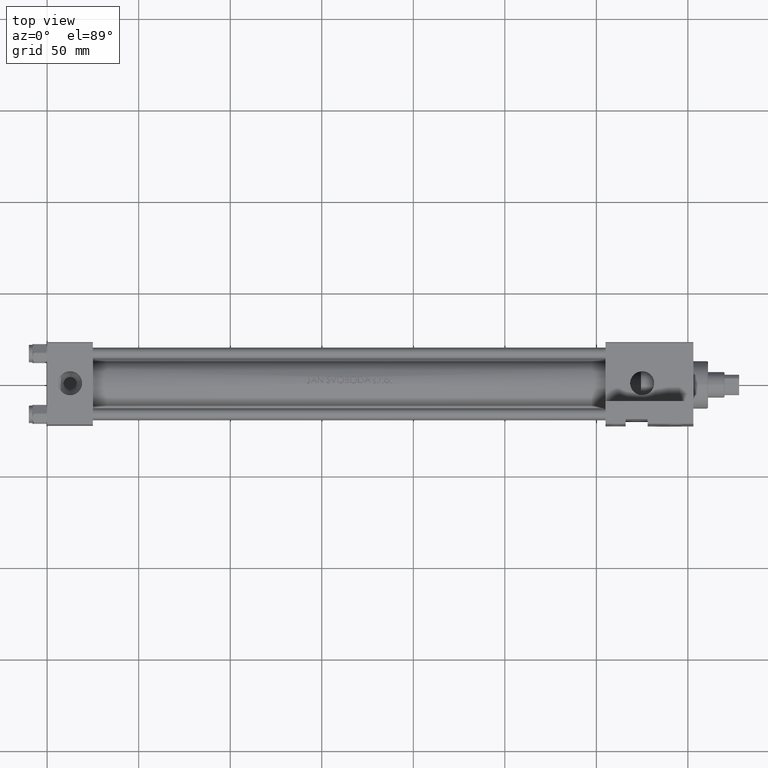
[diagram: clean part render]
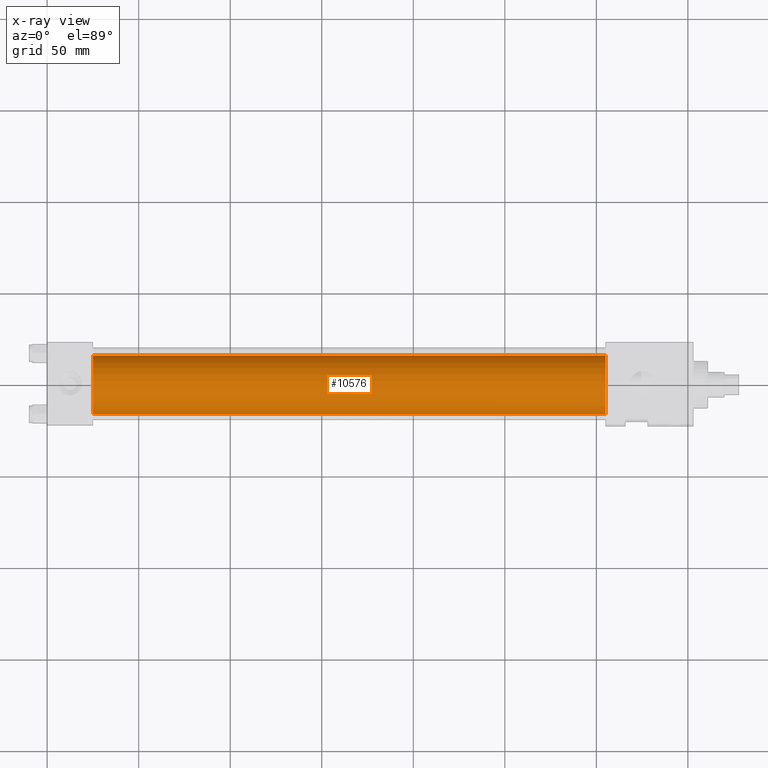
[diagram: x-ray — body ghosted, one internal face saturated and labeled with its STEP entity id]
A machine part, top view, then the same camera in x-ray: the body is ghosted and one INTERNAL B-rep face — a face not visible from any outside direction — is saturated and labeled: STEP entity #10576.
In plain terms, the highlighted cylindrical surface (edge-blend (fillet) strip) has radius 16 mm, axis along (-1, -0, 0).
Its self-contained STEP definition (entity closure, byte-faithful):
#270 = LINE ( 'NONE', #30950, #27333 ) ;
#1685 = CYLINDRICAL_SURFACE ( 'NONE', #13077, 16.00000000000000000 ) ;
#2990 = VERTEX_POINT ( 'NONE', #31631 ) ;
#4295 = DIRECTION ( 'NONE',  ( -1.000000000000000000, -0.000000000000000000, -0.000000000000000000 ) ) ;
#5916 = LINE ( 'NONE', #25515, #32840 ) ;
#6171 = DIRECTION ( 'NONE',  ( -1.000000000000000000, -0.000000000000000000, -0.000000000000000000 ) ) ;
#7547 = CARTESIAN_POINT ( 'NONE',  ( 305.0000000000000568, 2.020667218593132311E-15, -16.49999999999999645 ) ) ;
#7884 = CIRCLE ( 'NONE', #21549, 16.00000000000000000 ) ;
#7932 = ORIENTED_EDGE ( 'NONE', *, *, #46535, .F. ) ;
#8721 = CARTESIAN_POINT ( 'NONE',  ( 25.00000000000000000, 2.020667218593132311E-15, -16.49999999999999645 ) ) ;
#9832 = EDGE_LOOP ( 'NONE', ( #26577, #21033, #21303, #7932 ) ) ;
#10576 = ADVANCED_FACE ( 'NONE', ( #28838 ), #1685, .F. ) ;
#11073 = VERTEX_POINT ( 'NONE', #7547 ) ;
#13077 = AXIS2_PLACEMENT_3D ( 'NONE', #44155, #32863, #13281 ) ;
#13281 = DIRECTION ( 'NONE',  ( 0.000000000000000000, 0.000000000000000000, 1.000000000000000000 ) ) ;
#15047 = CIRCLE ( 'NONE', #35046, 16.00000000000000000 ) ;
#17446 = DIRECTION ( 'NONE',  ( 0.000000000000000000, 0.000000000000000000, -1.000000000000000000 ) ) ;
#20125 = DIRECTION ( 'NONE',  ( 1.000000000000000000, 0.000000000000000000, 0.000000000000000000 ) ) ;
#21033 = ORIENTED_EDGE ( 'NONE', *, *, #39901, .T. ) ;
#21303 = ORIENTED_EDGE ( 'NONE', *, *, #24826, .F. ) ;
#21549 = AXIS2_PLACEMENT_3D ( 'NONE', #38947, #20125, #39182 ) ;
#24826 = EDGE_CURVE ( 'NONE', #46191, #38833, #7884, .T. ) ;
#25515 = CARTESIAN_POINT ( 'NONE',  ( 305.0000000000000568, 2.020667218593132311E-15, -16.49999999999999645 ) ) ;
#26577 = ORIENTED_EDGE ( 'NONE', *, *, #36130, .T. ) ;
#27333 = VECTOR ( 'NONE', #4295, 1000.000000000000000 ) ;
#28838 = FACE_OUTER_BOUND ( 'NONE', #9832, .T. ) ;
#30950 = CARTESIAN_POINT ( 'NONE',  ( 305.0000000000000568, 6.123233995736727825E-17, 15.50000000000000355 ) ) ;
#31631 = CARTESIAN_POINT ( 'NONE',  ( 305.0000000000000568, 6.123233995736727825E-17, 15.50000000000000355 ) ) ;
#32840 = VECTOR ( 'NONE', #6171, 1000.000000000000000 ) ;
#32863 = DIRECTION ( 'NONE',  ( -1.000000000000000000, -0.000000000000000000, -0.000000000000000000 ) ) ;
#34040 = CARTESIAN_POINT ( 'NONE',  ( 25.00000000000000000, 6.123233995736727825E-17, 15.50000000000000355 ) ) ;
#35046 = AXIS2_PLACEMENT_3D ( 'NONE', #36262, #40007, #17446 ) ;
#36130 = EDGE_CURVE ( 'NONE', #2990, #11073, #15047, .T. ) ;
#36262 = CARTESIAN_POINT ( 'NONE',  ( 305.0000000000000568, 6.123233995736727825E-17, -0.4999999999999970024 ) ) ;
#38833 = VERTEX_POINT ( 'NONE', #8721 ) ;
#38947 = CARTESIAN_POINT ( 'NONE',  ( 25.00000000000000000, 6.123233995736727825E-17, -0.4999999999999970024 ) ) ;
#39182 = DIRECTION ( 'NONE',  ( 0.000000000000000000, 0.000000000000000000, -1.000000000000000000 ) ) ;
#39901 = EDGE_CURVE ( 'NONE', #11073, #38833, #5916, .T. ) ;
#40007 = DIRECTION ( 'NONE',  ( 1.000000000000000000, 0.000000000000000000, 0.000000000000000000 ) ) ;
#44155 = CARTESIAN_POINT ( 'NONE',  ( 305.0000000000000568, 6.123233995736727825E-17, -0.4999999999999970024 ) ) ;
#46191 = VERTEX_POINT ( 'NONE', #34040 ) ;
#46535 = EDGE_CURVE ( 'NONE', #2990, #46191, #270, .T. ) ;